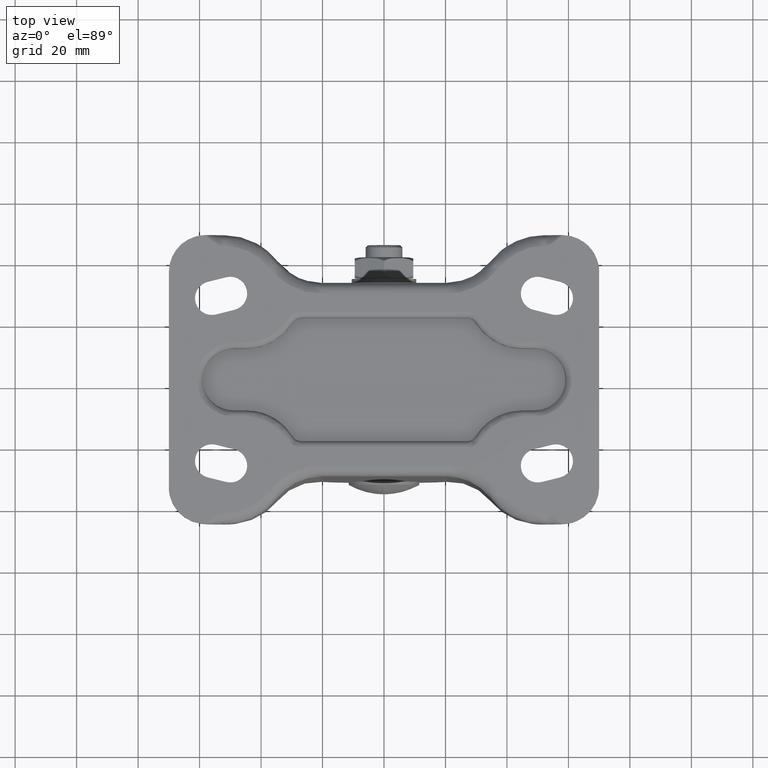
[diagram: clean part render]
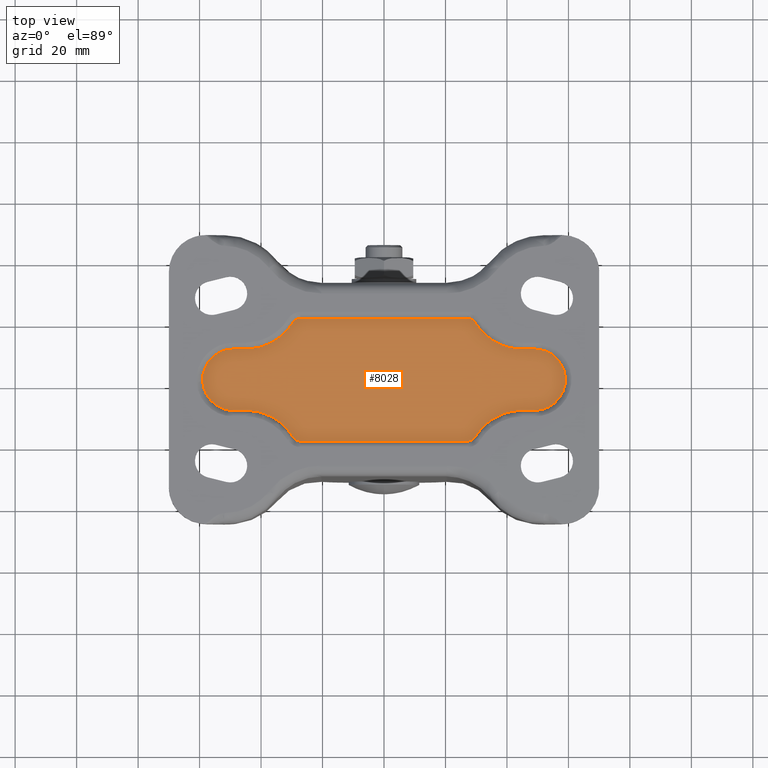
[diagram: same view with one face highlighted and labeled with its STEP entity id]
A machine part, top view. The second image highlights one B-rep face of the part: STEP entity #8028.
In plain terms, the highlighted face is a freeform B-spline surface patch.
Its self-contained STEP definition (entity closure, byte-faithful):
#7812=CARTESIAN_POINT('',(-64.894099571492973,21.997999922472239,101.999999000000000));
#7813=CARTESIAN_POINT('',(64.894098736499188,21.997999922472239,101.999999000000000));
#7814=CARTESIAN_POINT('',(-64.894099571492973,-21.998000995355842,101.999999000000000));
#7815=CARTESIAN_POINT('',(64.894098736499188,-21.998000995355842,101.999999000000000));
#7816=B_SPLINE_SURFACE_WITH_KNOTS('',1,1,((#7812,#7814),(#7813,#7815)),.UNSPECIFIED.,.F.,.F.,.U.,(2,2),(2,2),(0.0,129.788198307992190),(0.0,43.996000917828077),.UNSPECIFIED.);
#7817=CARTESIAN_POINT('',(-45.000001430511503,-10.000000000000220,101.999999000000000));
#7818=VERTEX_POINT('',#7817);
#7819=CARTESIAN_POINT('',(-48.999999825467100,-10.0,101.999999000000000));
#7820=VERTEX_POINT('',#7819);
#7821=CARTESIAN_POINT('',(-45.000001430511503,-10.000000000000220,101.999999000000000));
#7822=CARTESIAN_POINT('',(-48.999999825467100,-10.0,101.999999000000000));
#7823=QUASI_UNIFORM_CURVE('',1,(#7821,#7822),.UNSPECIFIED.,.F.,.U.);
#7824=EDGE_CURVE('',#7818,#7820,#7823,.T.);
#7825=ORIENTED_EDGE('',*,*,#7824,.F.);
#7826=CARTESIAN_POINT('',(-29.666960345448651,-18.571428432469400,101.999999000000000));
#7827=VERTEX_POINT('',#7826);
#7828=CARTESIAN_POINT('',(-29.666960345448651,-18.571428432469400,101.999999000000000));
#7829=CARTESIAN_POINT('',(-34.937693159737087,-9.999998713962038,101.999998999999970));
#7830=CARTESIAN_POINT('',(-45.000001430511503,-10.000000000000220,101.999999000000000));
#7838=(BOUNDED_CURVE()B_SPLINE_CURVE(2,(#7828,#7829,#7830),.UNSPECIFIED.,.F.,.U.)CURVE()GEOMETRIC_REPRESENTATION_ITEM()QUASI_UNIFORM_CURVE()RATIONAL_B_SPLINE_CURVE((1.0,0.872871528288077,1.0))REPRESENTATION_ITEM(''));
#7839=EDGE_CURVE('',#7827,#7818,#7838,.T.);
#7840=ORIENTED_EDGE('',*,*,#7839,.F.);
#7841=CARTESIAN_POINT('',(-27.111454000000201,-20.0,101.999999000000000));
#7842=VERTEX_POINT('',#7841);
#7843=CARTESIAN_POINT('',(-29.666960345448580,-18.571428432469350,101.999999000000000));
#7844=CARTESIAN_POINT('',(-28.788505090178571,-20.000000000000004,101.999998999999970));
#7845=CARTESIAN_POINT('',(-27.111454000000201,-20.0,101.999999000000000));
#7853=(BOUNDED_CURVE()B_SPLINE_CURVE(2,(#7843,#7844,#7845),.UNSPECIFIED.,.F.,.U.)CURVE()GEOMETRIC_REPRESENTATION_ITEM()QUASI_UNIFORM_CURVE()RATIONAL_B_SPLINE_CURVE((1.0,0.872871547677487,1.0))REPRESENTATION_ITEM(''));
#7854=EDGE_CURVE('',#7827,#7842,#7853,.T.);
#7855=ORIENTED_EDGE('',*,*,#7854,.T.);
#7856=CARTESIAN_POINT('',(27.111454942477600,-20.0,101.999999000000000));
#7857=VERTEX_POINT('',#7856);
#7858=CARTESIAN_POINT('',(27.111454942477600,-20.0,101.999999000000000));
#7859=CARTESIAN_POINT('',(-27.111454000000201,-20.0,101.999999000000000));
#7860=QUASI_UNIFORM_CURVE('',1,(#7858,#7859),.UNSPECIFIED.,.F.,.U.);
#7861=EDGE_CURVE('',#7857,#7842,#7860,.T.);
#7862=ORIENTED_EDGE('',*,*,#7861,.F.);
#7863=CARTESIAN_POINT('',(29.666957698627449,-18.571429777074599,101.999999000000000));
#7864=VERTEX_POINT('',#7863);
#7865=CARTESIAN_POINT('',(27.111454942477600,-20.0,101.999999000000000));
#7866=CARTESIAN_POINT('',(28.788503092336935,-19.999999067098159,101.999998999999970));
#7867=CARTESIAN_POINT('',(29.666957698627449,-18.571429777074599,101.999999000000000));
#7875=(BOUNDED_CURVE()B_SPLINE_CURVE(2,(#7865,#7866,#7867),.UNSPECIFIED.,.F.,.U.)CURVE()GEOMETRIC_REPRESENTATION_ITEM()QUASI_UNIFORM_CURVE()RATIONAL_B_SPLINE_CURVE((1.0,0.872871830224117,1.0))REPRESENTATION_ITEM(''));
#7876=EDGE_CURVE('',#7857,#7864,#7875,.T.);
#7877=ORIENTED_EDGE('',*,*,#7876,.T.);
#7878=CARTESIAN_POINT('',(44.999984999999803,-10.000000000000220,101.999999000000000));
#7879=VERTEX_POINT('',#7878);
#7880=CARTESIAN_POINT('',(44.999984999999803,-10.000000000000220,101.999999000000000));
#7881=CARTESIAN_POINT('',(34.937685391177929,-10.000006149186623,101.999998999999970));
#7882=CARTESIAN_POINT('',(29.666957698627360,-18.571429777074549,101.999999000000000));
#7890=(BOUNDED_CURVE()B_SPLINE_CURVE(2,(#7880,#7881,#7882),.UNSPECIFIED.,.F.,.U.)CURVE()GEOMETRIC_REPRESENTATION_ITEM()QUASI_UNIFORM_CURVE()RATIONAL_B_SPLINE_CURVE((1.0,0.872871690855885,1.0))REPRESENTATION_ITEM(''));
#7891=EDGE_CURVE('',#7879,#7864,#7890,.T.);
#7892=ORIENTED_EDGE('',*,*,#7891,.F.);
#7893=CARTESIAN_POINT('',(48.999989542281902,-9.999999999997918,101.999999000000000));
#7894=VERTEX_POINT('',#7893);
#7895=CARTESIAN_POINT('',(48.999989542281902,-9.999999999997918,101.999999000000000));
#7896=CARTESIAN_POINT('',(44.999984999999803,-10.000000000000220,101.999999000000000));
#7897=QUASI_UNIFORM_CURVE('',1,(#7895,#7896),.UNSPECIFIED.,.F.,.U.);
#7898=EDGE_CURVE('',#7894,#7879,#7897,.T.);
#7899=ORIENTED_EDGE('',*,*,#7898,.F.);
#7900=CARTESIAN_POINT('',(48.999996000000102,9.999999999999890,101.999999000000000));
#7901=VERTEX_POINT('',#7900);
#7902=CARTESIAN_POINT('',(48.999989542281902,-9.999999999997918,101.999999000000000));
#7903=CARTESIAN_POINT('',(49.940871416126100,-10.000332468144141,101.999999000000100));
#7904=CARTESIAN_POINT('',(51.413286522718138,-9.790620657124460,101.999998999999800));
#7905=CARTESIAN_POINT('',(53.216952300599687,-9.107348733991723,101.999999000000300));
#7906=CARTESIAN_POINT('',(54.648845419049870,-8.307829917266853,101.999998999999090));
#7907=CARTESIAN_POINT('',(56.060910885562613,-7.177799030365568,101.999999000000900));
#7908=CARTESIAN_POINT('',(57.454154724619379,-5.501299033525024,101.999999000000000));
#7909=CARTESIAN_POINT('',(58.454839387166807,-3.513375854250245,101.999999000000600));
#7910=CARTESIAN_POINT('',(59.020242959006602,-1.195794054053913,101.999999000000600));
#7911=CARTESIAN_POINT('',(59.034014238198978,1.031465248918451,101.999998999997900));
#7912=CARTESIAN_POINT('',(58.574426587755411,3.076816752298853,101.999999000000900));
#7913=CARTESIAN_POINT('',(57.749647702785211,5.001463534788319,101.999999000005700));
#7914=CARTESIAN_POINT('',(56.432059486043443,6.848208751907580,101.999998999995900));
#7915=CARTESIAN_POINT('',(54.729034522972412,8.281021710063612,101.999999000002700));
#7916=CARTESIAN_POINT('',(52.961420427357687,9.239700904003497,101.999998999999510));
#7917=CARTESIAN_POINT('',(51.127058049881619,9.845669202633593,101.999999000000000));
#7918=CARTESIAN_POINT('',(49.736313824425523,10.000147447846750,101.999998999999900));
#7919=CARTESIAN_POINT('',(48.999996000000102,9.999999999999890,101.999999000000000));
#7920=B_SPLINE_CURVE_WITH_KNOTS('',3,(#7902,#7903,#7904,#7905,#7906,#7907,#7908,#7909,#7910,#7911,#7912,#7913,#7914,#7915,#7916,#7917,#7918,#7919),.UNSPECIFIED.,.F.,.U.,(4,1,1,1,1,1,1,1,1,1,1,1,1,1,1,4),(0.000000474956678,2.822542876941835,4.417890957959862,5.767815241829442,7.731335061988204,9.817562271356618,12.271860968222731,14.358126655271169,16.935268524388061,18.898770720271521,20.616851206372669,23.193908635729759,25.648323921391889,27.243679102634889,29.207201307623968,31.416130115495619),.UNSPECIFIED.);
#7921=EDGE_CURVE('',#7894,#7901,#7920,.T.);
#7922=ORIENTED_EDGE('',*,*,#7921,.T.);
#7923=CARTESIAN_POINT('',(44.999996000000102,9.999999999999890,101.999999000000000));
#7924=VERTEX_POINT('',#7923);
#7925=CARTESIAN_POINT('',(44.999996000000102,9.999999999999890,101.999999000000000));
#7926=CARTESIAN_POINT('',(48.999996000000102,9.999999999999890,101.999999000000000));
#7927=QUASI_UNIFORM_CURVE('',1,(#7925,#7926),.UNSPECIFIED.,.F.,.U.);
#7928=EDGE_CURVE('',#7924,#7901,#7927,.T.);
#7929=ORIENTED_EDGE('',*,*,#7928,.F.);
#7930=CARTESIAN_POINT('',(29.666963235924001,18.571423731876951,101.999999000000000));
#7931=VERTEX_POINT('',#7930);
#7932=CARTESIAN_POINT('',(29.666963235924001,18.571423731876951,101.999999000000000));
#7933=CARTESIAN_POINT('',(34.937695115554703,10.000000406039566,101.999998999999990));
#7934=CARTESIAN_POINT('',(44.999996000000102,9.999999999999890,101.999999000000000));
#7942=(BOUNDED_CURVE()B_SPLINE_CURVE(2,(#7932,#7933,#7934),.UNSPECIFIED.,.F.,.U.)CURVE()GEOMETRIC_REPRESENTATION_ITEM()QUASI_UNIFORM_CURVE()RATIONAL_B_SPLINE_CURVE((1.0,0.872871650871139,1.0))REPRESENTATION_ITEM(''));
#7943=EDGE_CURVE('',#7931,#7924,#7942,.T.);
#7944=ORIENTED_EDGE('',*,*,#7943,.F.);
#7945=CARTESIAN_POINT('',(27.111453999999799,20.0,101.999999000000000));
#7946=VERTEX_POINT('',#7945);
#7947=CARTESIAN_POINT('',(29.666963235924008,18.571423731876951,101.999999000000000));
#7948=CARTESIAN_POINT('',(28.788508711492241,20.0,101.999998999999990));
#7949=CARTESIAN_POINT('',(27.111453999999799,20.0,101.999999000000000));
#7957=(BOUNDED_CURVE()B_SPLINE_CURVE(2,(#7947,#7948,#7949),.UNSPECIFIED.,.F.,.U.)CURVE()GEOMETRIC_REPRESENTATION_ITEM()QUASI_UNIFORM_CURVE()RATIONAL_B_SPLINE_CURVE((1.0,0.872871098910272,1.0))REPRESENTATION_ITEM(''));
#7958=EDGE_CURVE('',#7931,#7946,#7957,.T.);
#7959=ORIENTED_EDGE('',*,*,#7958,.T.);
#7960=CARTESIAN_POINT('',(-27.111453057522400,20.0,101.999999000000000));
#7961=VERTEX_POINT('',#7960);
#7962=CARTESIAN_POINT('',(-27.111453057522400,20.0,101.999999000000000));
#7963=CARTESIAN_POINT('',(27.111453999999799,20.0,101.999999000000000));
#7964=QUASI_UNIFORM_CURVE('',1,(#7962,#7963),.UNSPECIFIED.,.F.,.U.);
#7965=EDGE_CURVE('',#7961,#7946,#7964,.T.);
#7966=ORIENTED_EDGE('',*,*,#7965,.F.);
#7967=CARTESIAN_POINT('',(-29.666964825260450,18.571424692446801,101.999999000000000));
#7968=VERTEX_POINT('',#7967);
#7969=CARTESIAN_POINT('',(-27.111453057522400,20.0,101.999999000000000));
#7970=CARTESIAN_POINT('',(-28.788509187807310,20.000001013220245,101.999998999999990));
#7971=CARTESIAN_POINT('',(-29.666964825260450,18.571424692446801,101.999999000000000));
#7979=(BOUNDED_CURVE()B_SPLINE_CURVE(2,(#7969,#7970,#7971),.UNSPECIFIED.,.F.,.U.)CURVE()GEOMETRIC_REPRESENTATION_ITEM()QUASI_UNIFORM_CURVE()RATIONAL_B_SPLINE_CURVE((1.0,0.872871021103550,1.0))REPRESENTATION_ITEM(''));
#7980=EDGE_CURVE('',#7961,#7968,#7979,.T.);
#7981=ORIENTED_EDGE('',*,*,#7980,.T.);
#7982=CARTESIAN_POINT('',(-45.0,9.999999999999890,101.999999000000000));
#7983=VERTEX_POINT('',#7982);
#7984=CARTESIAN_POINT('',(-45.0,10.0,101.999999000000000));
#7985=CARTESIAN_POINT('',(-34.937697089600256,9.999999999999998,101.999998999999990));
#7986=CARTESIAN_POINT('',(-29.666964825260500,18.571424692446829,101.999999000000000));
#7994=(BOUNDED_CURVE()B_SPLINE_CURVE(2,(#7984,#7985,#7986),.UNSPECIFIED.,.F.,.U.)CURVE()GEOMETRIC_REPRESENTATION_ITEM()QUASI_UNIFORM_CURVE()RATIONAL_B_SPLINE_CURVE((1.0,0.872871622665243,1.0))REPRESENTATION_ITEM(''));
#7995=EDGE_CURVE('',#7983,#7968,#7994,.T.);
#7996=ORIENTED_EDGE('',*,*,#7995,.F.);
#7997=CARTESIAN_POINT('',(-48.999996858407400,9.999999999999510,101.999999000000000));
#7998=VERTEX_POINT('',#7997);
#7999=CARTESIAN_POINT('',(-48.999996858407400,9.999999999999510,101.999999000000000));
#8000=CARTESIAN_POINT('',(-45.0,9.999999999999890,101.999999000000000));
#8001=QUASI_UNIFORM_CURVE('',1,(#7999,#8000),.UNSPECIFIED.,.F.,.U.);
#8002=EDGE_CURVE('',#7998,#7983,#8001,.T.);
#8003=ORIENTED_EDGE('',*,*,#8002,.F.);
#8004=CARTESIAN_POINT('',(-48.999996858407400,9.999999999999510,101.999999000000000));
#8005=CARTESIAN_POINT('',(-49.940876812794883,10.000340362995001,101.999999000000100));
#8006=CARTESIAN_POINT('',(-51.535997798966321,9.773124990693038,101.999998999999800));
#8007=CARTESIAN_POINT('',(-53.673260318246442,8.918386308633613,101.999999000000300));
#8008=CARTESIAN_POINT('',(-55.218419287672923,7.899546766392567,101.999998999999510));
#8009=CARTESIAN_POINT('',(-56.555217944418096,6.626781357357253,101.999999000001000));
#8010=CARTESIAN_POINT('',(-57.510130891061522,5.339224330194309,101.999998999997900));
#8011=CARTESIAN_POINT('',(-58.312422482824658,3.769389180278234,101.999999000002600));
#8012=CARTESIAN_POINT('',(-58.846279860277562,2.084494398289015,101.999998999998790));
#8013=CARTESIAN_POINT('',(-59.045556344645107,0.286922011607771,101.999998999999700));
#8014=CARTESIAN_POINT('',(-58.942349591407122,-1.391624277378446,101.999999000000300));
#8015=CARTESIAN_POINT('',(-58.531618393842400,-3.276144767598132,101.999998999999700));
#8016=CARTESIAN_POINT('',(-57.775299674515558,-4.927399916864823,101.999999000000100));
#8017=CARTESIAN_POINT('',(-56.728091762193714,-6.394681696346732,101.999999000000000));
#8018=CARTESIAN_POINT('',(-55.687930454269313,-7.500790988148266,101.999999000000100));
#8019=CARTESIAN_POINT('',(-54.144275033084106,-8.660563150946278,101.999998999999600));
#8020=CARTESIAN_POINT('',(-51.904010978314680,-9.703433364853147,101.999999000001490));
#8021=CARTESIAN_POINT('',(-50.063619082092288,-10.000616720480670,101.999998999997500));
#8022=CARTESIAN_POINT('',(-48.999999825467100,-10.0,101.999999000000000));
#8023=B_SPLINE_CURVE_WITH_KNOTS('',3,(#8004,#8005,#8006,#8007,#8008,#8009,#8010,#8011,#8012,#8013,#8014,#8015,#8016,#8017,#8018,#8019,#8020,#8021,#8022),.UNSPECIFIED.,.F.,.U.,(4,1,1,1,1,1,1,1,1,1,1,1,1,1,1,1,4),(0.000000474920732,2.822542594661375,4.786048030604967,6.872283447732308,8.344967736811594,10.308420899275401,11.658323481967990,13.621803086631891,15.585342665881480,17.058002190827271,18.653380513121530,21.353062566870999,22.457599568058409,24.052963991663479,25.893755581724530,28.225467724512662,31.416126973843880),.UNSPECIFIED.);
#8024=EDGE_CURVE('',#7998,#7820,#8023,.T.);
#8025=ORIENTED_EDGE('',*,*,#8024,.T.);
#8026=EDGE_LOOP('',(#7825,#7840,#7855,#7862,#7877,#7892,#7899,#7922,#7929,#7944,#7959,#7966,#7981,#7996,#8003,#8025));
#8027=FACE_OUTER_BOUND('',#8026,.T.);
#8028=ADVANCED_FACE('',(#8027),#7816,.F.);